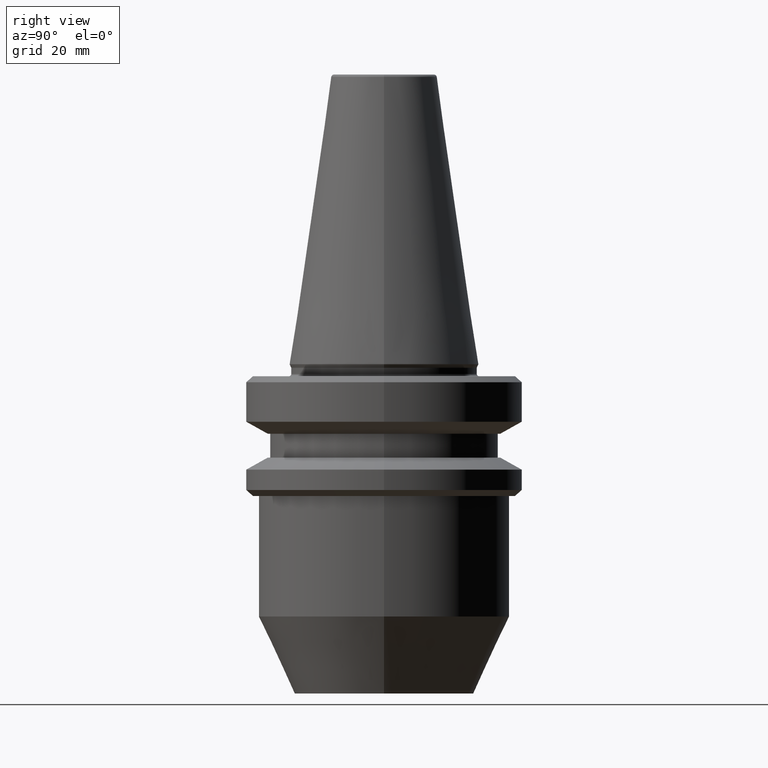
[diagram: clean part render]
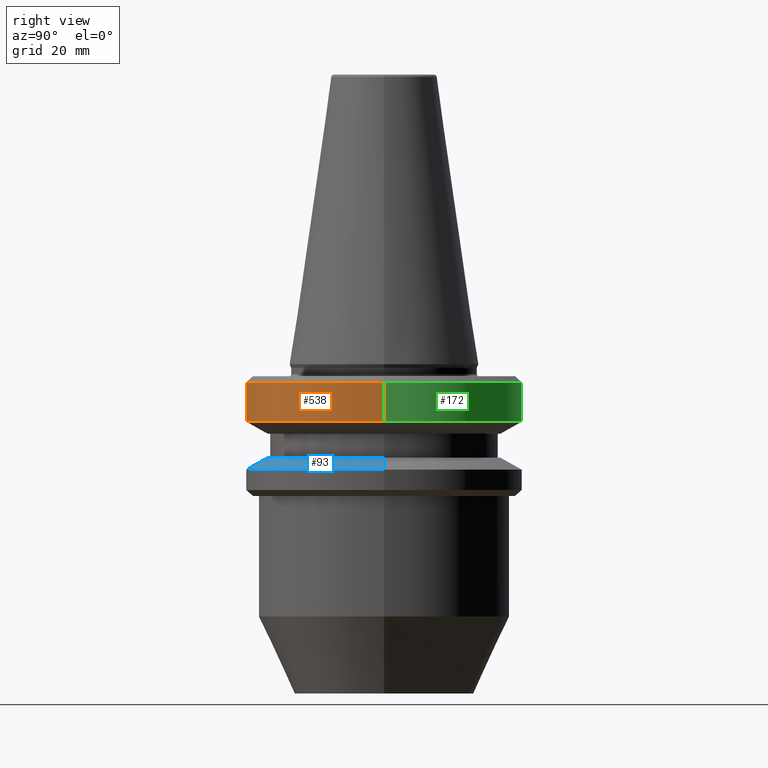
[diagram: same view with three faces highlighted in distinct colors, each labeled with its STEP entity id]
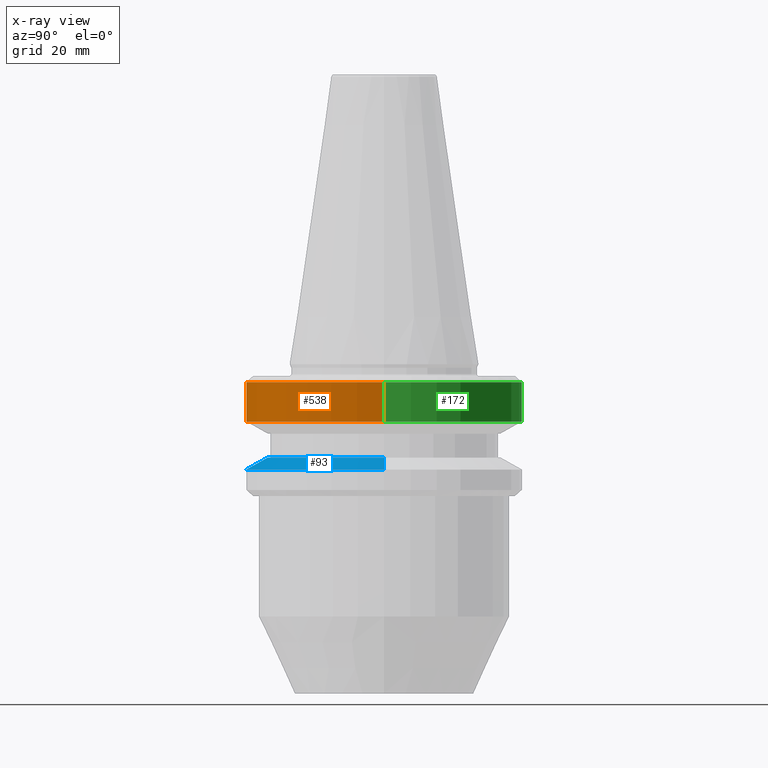
[diagram: x-ray of the same camera — body ghosted, the three highlighted faces saturated]
A machine part, right view with three faces highlighted in distinct colors.
The next image is the same camera in x-ray (body ghosted, the three faces saturated) — at least one of them is partly hidden behind the body in this view.
Their STEP definitions:

[orange] entity #538 — the highlighted cylindrical surface (partial cylindrical patch) has radius 23 mm, axis along (-0, -0, 1).
#1 = DIRECTION ( 'NONE',  ( -0.0000000000000000000, -0.0000000000000000000, 1.000000000000000000 ) ) ;
#18 = AXIS2_PLACEMENT_3D ( 'NONE', #787, #1, #415 ) ;
#42 = EDGE_LOOP ( 'NONE', ( #66, #813, #332, #101 ) ) ;
#66 = ORIENTED_EDGE ( 'NONE', *, *, #549, .F. ) ;
#101 = ORIENTED_EDGE ( 'NONE', *, *, #355, .F. ) ;
#102 = CYLINDRICAL_SURFACE ( 'NONE', #726, 23.00000000000002100 ) ;
#126 = FACE_OUTER_BOUND ( 'NONE', #42, .T. ) ;
#144 = VERTEX_POINT ( 'NONE', #779 ) ;
#160 = CARTESIAN_POINT ( 'NONE',  ( -23.00000000000002100, 2.816687638038914700E-015, -9.600117335054614300 ) ) ;
#210 = DIRECTION ( 'NONE',  ( 1.000000000000000000, 0.0000000000000000000, 0.0000000000000000000 ) ) ;
#330 = AXIS2_PLACEMENT_3D ( 'NONE', #353, #854, #210 ) ;
#332 = ORIENTED_EDGE ( 'NONE', *, *, #547, .T. ) ;
#353 = CARTESIAN_POINT ( 'NONE',  ( 0.0000000000000000000, 0.0000000000000000000, -9.600117335054614300 ) ) ;
#355 = EDGE_CURVE ( 'NONE', #144, #494, #597, .T. ) ;
#361 = DIRECTION ( 'NONE',  ( -0.0000000000000000000, -0.0000000000000000000, 1.000000000000000000 ) ) ;
#370 = CARTESIAN_POINT ( 'NONE',  ( 0.0000000000000000000, 0.0000000000000000000, 98.56026596081761700 ) ) ;
#415 = DIRECTION ( 'NONE',  ( 1.000000000000000000, 0.0000000000000000000, 0.0000000000000000000 ) ) ;
#427 = CARTESIAN_POINT ( 'NONE',  ( 23.00000000000002100, 0.0000000000000000000, 98.56026596081761700 ) ) ;
#455 = VERTEX_POINT ( 'NONE', #160 ) ;
#459 = EDGE_CURVE ( 'NONE', #455, #555, #892, .T. ) ;
#494 = VERTEX_POINT ( 'NONE', #835 ) ;
#513 = LINE ( 'NONE', #583, #895 ) ;
#534 = DIRECTION ( 'NONE',  ( 1.000000000000000000, 0.0000000000000000000, 0.0000000000000000000 ) ) ;
#538 = ADVANCED_FACE ( 'NONE', ( #126 ), #102, .T. ) ;
#547 = EDGE_CURVE ( 'NONE', #555, #494, #873, .T. ) ;
#549 = EDGE_CURVE ( 'NONE', #455, #144, #513, .T. ) ;
#555 = VERTEX_POINT ( 'NONE', #859 ) ;
#583 = CARTESIAN_POINT ( 'NONE',  ( -23.00000000000002100, 2.816687638038915100E-015, 98.56026596081761700 ) ) ;
#597 = CIRCLE ( 'NONE', #18, 23.00000000000002100 ) ;
#662 = VECTOR ( 'NONE', #753, 1000.000000000000000 ) ;
#726 = AXIS2_PLACEMENT_3D ( 'NONE', #370, #730, #534 ) ;
#730 = DIRECTION ( 'NONE',  ( -0.0000000000000000000, -0.0000000000000000000, 1.000000000000000000 ) ) ;
#753 = DIRECTION ( 'NONE',  ( -0.0000000000000000000, -0.0000000000000000000, 1.000000000000000000 ) ) ;
#779 = CARTESIAN_POINT ( 'NONE',  ( -23.00000000000002100, 2.816687638038915100E-015, -3.000000000000113700 ) ) ;
#787 = CARTESIAN_POINT ( 'NONE',  ( 0.0000000000000000000, 0.0000000000000000000, -3.000000000000113700 ) ) ;
#813 = ORIENTED_EDGE ( 'NONE', *, *, #459, .T. ) ;
#835 = CARTESIAN_POINT ( 'NONE',  ( 23.00000000000002100, 0.0000000000000000000, -3.000000000000113700 ) ) ;
#854 = DIRECTION ( 'NONE',  ( -0.0000000000000000000, -0.0000000000000000000, 1.000000000000000000 ) ) ;
#859 = CARTESIAN_POINT ( 'NONE',  ( 23.00000000000002100, 0.0000000000000000000, -9.600117335054614300 ) ) ;
#873 = LINE ( 'NONE', #427, #662 ) ;
#892 = CIRCLE ( 'NONE', #330, 23.00000000000002100 ) ;
#895 = VECTOR ( 'NONE', #361, 1000.000000000000000 ) ;

[blue] entity #93 — the highlighted conical surface has half-angle 60 deg.
#22 = CIRCLE ( 'NONE', #705, 19.53610161513874400 ) ;
#70 = DIRECTION ( 'NONE',  ( 1.000000000000000000, 0.0000000000000000000, 0.0000000000000000000 ) ) ;
#93 = ADVANCED_FACE ( 'NONE', ( #442 ), #794, .T. ) ;
#103 = CARTESIAN_POINT ( 'NONE',  ( -19.53610161513874400, 0.0000000000000000000, -15.60000000000012800 ) ) ;
#111 = AXIS2_PLACEMENT_3D ( 'NONE', #124, #279, #521 ) ;
#112 = DIRECTION ( 'NONE',  ( 0.8660254037844389300, 1.060575238724907300E-016, -0.4999999999999995000 ) ) ;
#124 = CARTESIAN_POINT ( 'NONE',  ( 0.0000000000000000000, 0.0000000000000000000, -17.59988266494577800 ) ) ;
#279 = DIRECTION ( 'NONE',  ( -0.0000000000000000000, -0.0000000000000000000, 1.000000000000000000 ) ) ;
#284 = DIRECTION ( 'NONE',  ( -1.000000000000000000, 0.0000000000000000000, 0.0000000000000000000 ) ) ;
#340 = CARTESIAN_POINT ( 'NONE',  ( 0.0000000000000000000, 0.0000000000000000000, -17.59988266494577800 ) ) ;
#365 = EDGE_LOOP ( 'NONE', ( #650, #565, #907, #408 ) ) ;
#367 = VERTEX_POINT ( 'NONE', #691 ) ;
#374 = EDGE_CURVE ( 'NONE', #367, #570, #887, .T. ) ;
#376 = DIRECTION ( 'NONE',  ( -0.8660254037844389300, 0.0000000000000000000, -0.4999999999999995000 ) ) ;
#408 = ORIENTED_EDGE ( 'NONE', *, *, #864, .T. ) ;
#442 = FACE_OUTER_BOUND ( 'NONE', #365, .T. ) ;
#465 = AXIS2_PLACEMENT_3D ( 'NONE', #340, #741, #284 ) ;
#471 = CIRCLE ( 'NONE', #111, 23.00000000000085600 ) ;
#483 = VECTOR ( 'NONE', #112, 1000.000000000000000 ) ;
#493 = VECTOR ( 'NONE', #376, 1000.000000000000000 ) ;
#510 = CARTESIAN_POINT ( 'NONE',  ( 23.00000000000085600, 0.0000000000000000000, -17.59988266494577800 ) ) ;
#511 = CARTESIAN_POINT ( 'NONE',  ( 0.0000000000000000000, 0.0000000000000000000, -15.60000000000012800 ) ) ;
#521 = DIRECTION ( 'NONE',  ( 1.000000000000000000, 0.0000000000000000000, 0.0000000000000000000 ) ) ;
#533 = EDGE_CURVE ( 'NONE', #884, #655, #689, .T. ) ;
#565 = ORIENTED_EDGE ( 'NONE', *, *, #742, .F. ) ;
#570 = VERTEX_POINT ( 'NONE', #510 ) ;
#616 = CARTESIAN_POINT ( 'NONE',  ( -23.00000000000085600, 0.0000000000000000000, -17.59988266494577800 ) ) ;
#650 = ORIENTED_EDGE ( 'NONE', *, *, #374, .F. ) ;
#655 = VERTEX_POINT ( 'NONE', #707 ) ;
#689 = LINE ( 'NONE', #616, #493 ) ;
#691 = CARTESIAN_POINT ( 'NONE',  ( 19.53610161513874400, 2.604585034559363300E-015, -15.60000000000012800 ) ) ;
#700 = DIRECTION ( 'NONE',  ( -0.0000000000000000000, -0.0000000000000000000, 1.000000000000000000 ) ) ;
#705 = AXIS2_PLACEMENT_3D ( 'NONE', #511, #700, #70 ) ;
#707 = CARTESIAN_POINT ( 'NONE',  ( -23.00000000000085600, 2.816687638039017300E-015, -17.59988266494577800 ) ) ;
#715 = CARTESIAN_POINT ( 'NONE',  ( 23.00000000000085600, 2.816687638039017300E-015, -17.59988266494577800 ) ) ;
#741 = DIRECTION ( 'NONE',  ( 0.0000000000000000000, 0.0000000000000000000, -1.000000000000000000 ) ) ;
#742 = EDGE_CURVE ( 'NONE', #884, #367, #22, .T. ) ;
#794 = CONICAL_SURFACE ( 'NONE', #465, 23.00000000000085600, 1.047197551196598300 ) ;
#864 = EDGE_CURVE ( 'NONE', #655, #570, #471, .T. ) ;
#884 = VERTEX_POINT ( 'NONE', #103 ) ;
#887 = LINE ( 'NONE', #715, #483 ) ;
#907 = ORIENTED_EDGE ( 'NONE', *, *, #533, .T. ) ;

[green] entity #172 — the highlighted cylindrical surface (partial cylindrical patch) has radius 23 mm, axis along (-0, -0, 1).
#9 = CIRCLE ( 'NONE', #876, 23.00000000000002100 ) ;
#46 = ORIENTED_EDGE ( 'NONE', *, *, #549, .T. ) ;
#80 = AXIS2_PLACEMENT_3D ( 'NONE', #687, #582, #532 ) ;
#144 = VERTEX_POINT ( 'NONE', #779 ) ;
#157 = DIRECTION ( 'NONE',  ( 1.000000000000000000, 0.0000000000000000000, 0.0000000000000000000 ) ) ;
#160 = CARTESIAN_POINT ( 'NONE',  ( -23.00000000000002100, 2.816687638038914700E-015, -9.600117335054614300 ) ) ;
#172 = ADVANCED_FACE ( 'NONE', ( #824 ), #400, .T. ) ;
#175 = EDGE_CURVE ( 'NONE', #494, #144, #9, .T. ) ;
#361 = DIRECTION ( 'NONE',  ( -0.0000000000000000000, -0.0000000000000000000, 1.000000000000000000 ) ) ;
#400 = CYLINDRICAL_SURFACE ( 'NONE', #912, 23.00000000000002100 ) ;
#406 = EDGE_LOOP ( 'NONE', ( #762, #46, #780, #586 ) ) ;
#427 = CARTESIAN_POINT ( 'NONE',  ( 23.00000000000002100, 0.0000000000000000000, 98.56026596081761700 ) ) ;
#455 = VERTEX_POINT ( 'NONE', #160 ) ;
#494 = VERTEX_POINT ( 'NONE', #835 ) ;
#497 = DIRECTION ( 'NONE',  ( -0.0000000000000000000, -0.0000000000000000000, 1.000000000000000000 ) ) ;
#513 = LINE ( 'NONE', #583, #895 ) ;
#532 = DIRECTION ( 'NONE',  ( 1.000000000000000000, 0.0000000000000000000, 0.0000000000000000000 ) ) ;
#547 = EDGE_CURVE ( 'NONE', #555, #494, #873, .T. ) ;
#549 = EDGE_CURVE ( 'NONE', #455, #144, #513, .T. ) ;
#555 = VERTEX_POINT ( 'NONE', #859 ) ;
#577 = CIRCLE ( 'NONE', #80, 23.00000000000002100 ) ;
#582 = DIRECTION ( 'NONE',  ( -0.0000000000000000000, -0.0000000000000000000, 1.000000000000000000 ) ) ;
#583 = CARTESIAN_POINT ( 'NONE',  ( -23.00000000000002100, 2.816687638038915100E-015, 98.56026596081761700 ) ) ;
#586 = ORIENTED_EDGE ( 'NONE', *, *, #547, .F. ) ;
#662 = VECTOR ( 'NONE', #753, 1000.000000000000000 ) ;
#674 = CARTESIAN_POINT ( 'NONE',  ( 0.0000000000000000000, 0.0000000000000000000, 98.56026596081761700 ) ) ;
#687 = CARTESIAN_POINT ( 'NONE',  ( 0.0000000000000000000, 0.0000000000000000000, -9.600117335054614300 ) ) ;
#720 = EDGE_CURVE ( 'NONE', #555, #455, #577, .T. ) ;
#753 = DIRECTION ( 'NONE',  ( -0.0000000000000000000, -0.0000000000000000000, 1.000000000000000000 ) ) ;
#762 = ORIENTED_EDGE ( 'NONE', *, *, #720, .T. ) ;
#779 = CARTESIAN_POINT ( 'NONE',  ( -23.00000000000002100, 2.816687638038915100E-015, -3.000000000000113700 ) ) ;
#780 = ORIENTED_EDGE ( 'NONE', *, *, #175, .F. ) ;
#783 = CARTESIAN_POINT ( 'NONE',  ( 0.0000000000000000000, 0.0000000000000000000, -3.000000000000113700 ) ) ;
#824 = FACE_OUTER_BOUND ( 'NONE', #406, .T. ) ;
#835 = CARTESIAN_POINT ( 'NONE',  ( 23.00000000000002100, 0.0000000000000000000, -3.000000000000113700 ) ) ;
#859 = CARTESIAN_POINT ( 'NONE',  ( 23.00000000000002100, 0.0000000000000000000, -9.600117335054614300 ) ) ;
#873 = LINE ( 'NONE', #427, #662 ) ;
#876 = AXIS2_PLACEMENT_3D ( 'NONE', #783, #932, #157 ) ;
#895 = VECTOR ( 'NONE', #361, 1000.000000000000000 ) ;
#912 = AXIS2_PLACEMENT_3D ( 'NONE', #674, #497, #933 ) ;
#932 = DIRECTION ( 'NONE',  ( -0.0000000000000000000, -0.0000000000000000000, 1.000000000000000000 ) ) ;
#933 = DIRECTION ( 'NONE',  ( 1.000000000000000000, 0.0000000000000000000, 0.0000000000000000000 ) ) ;